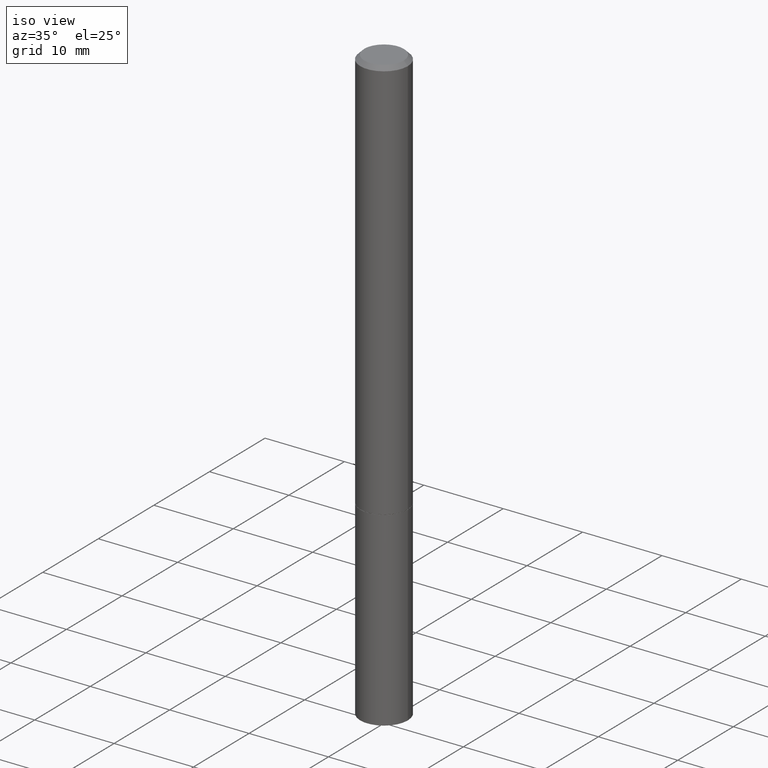
[diagram: clean part render]
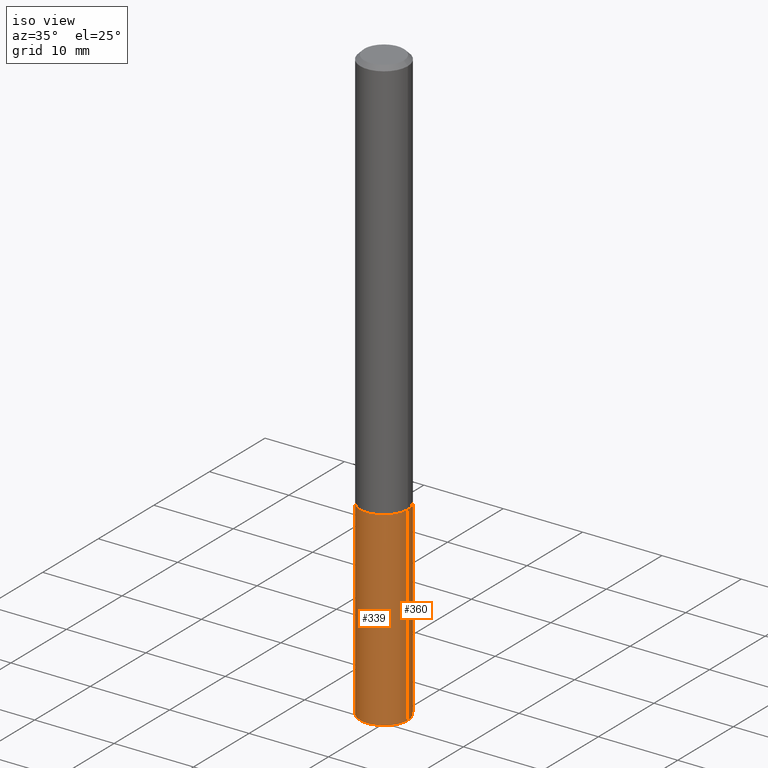
[diagram: same view with one multi-face feature highlighted, each face labeled with its STEP entity id]
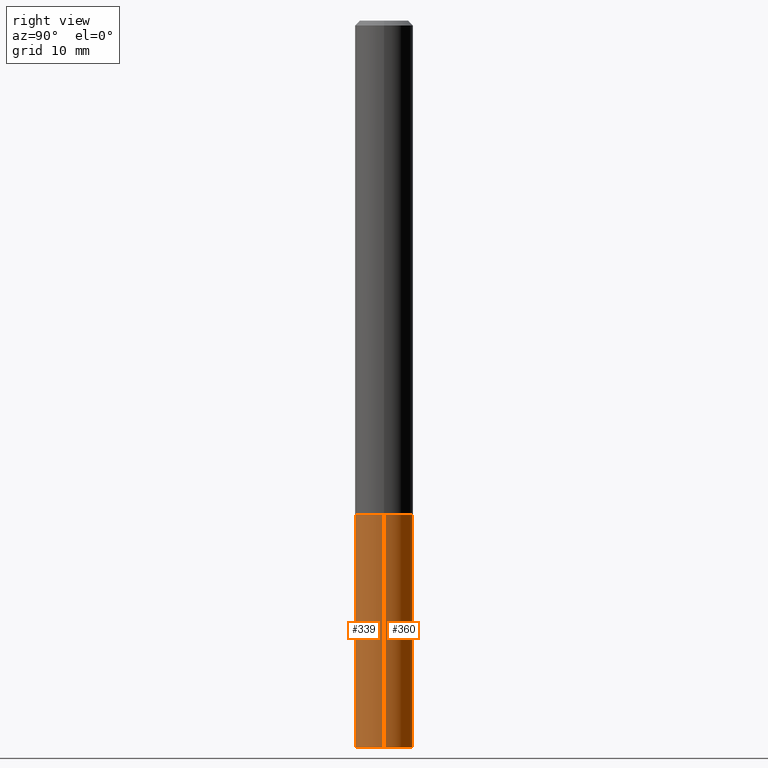
[diagram: same view with one multi-face feature highlighted, each face labeled with its STEP entity id]
A machine part, iso view. The highlighted faces form ONE feature: a constant-radius fillet chain: 2 tangent blend faces with common blend radius 2.9997 mm. The faces share edges in the B-rep.
A second angle (right view) of the same feature is appended — it is thin or edge-on in the first view.
Their STEP definitions:
[1] entity #360 (Cylinder):
#1 = LINE ( 'NONE', #258, #297 ) ;
#7 = VERTEX_POINT ( 'NONE', #182 ) ;
#19 = CARTESIAN_POINT ( 'NONE',  ( 4.910256815939135309E-29, -7.010545380263150922E-15, -2.007899999999999796 ) ) ;
#35 = CYLINDRICAL_SURFACE ( 'NONE', #265, 0.1180999999999999966 ) ;
#36 = ORIENTED_EDGE ( 'NONE', *, *, #198, .T. ) ;
#42 = EDGE_CURVE ( 'NONE', #150, #318, #61, .T. ) ;
#43 = AXIS2_PLACEMENT_3D ( 'NONE', #19, #134, #272 ) ;
#50 = LINE ( 'NONE', #261, #118 ) ;
#58 = DIRECTION ( 'NONE',  ( 1.000000000000000000, -6.982962677686266711E-15, 4.876176775795936353E-29 ) ) ;
#59 = ORIENTED_EDGE ( 'NONE', *, *, #42, .F. ) ;
#61 = CIRCLE ( 'NONE', #43, 0.1180999999999999966 ) ;
#65 = CARTESIAN_POINT ( 'NONE',  ( 0.000000000000000000, 0.000000000000000000, 0.000000000000000000 ) ) ;
#80 = DIRECTION ( 'NONE',  ( -2.445468806185136877E-29, 3.491481338843145188E-15, 1.000000000000000000 ) ) ;
#92 = EDGE_LOOP ( 'NONE', ( #36, #288, #59, #178 ) ) ;
#94 = AXIS2_PLACEMENT_3D ( 'NONE', #109, #340, #250 ) ;
#109 = CARTESIAN_POINT ( 'NONE',  ( 7.220980290903470182E-29, -1.030964609733603853E-14, -2.952799999999999869 ) ) ;
#118 = VECTOR ( 'NONE', #229, 39.37007874015748143 ) ;
#134 = DIRECTION ( 'NONE',  ( -2.445468806185136597E-29, 3.491481338843145583E-15, 1.000000000000000000 ) ) ;
#139 = CARTESIAN_POINT ( 'NONE',  ( 0.1180999999999999966, -1.113433398957078679E-14, -2.952799999999999869 ) ) ;
#150 = VERTEX_POINT ( 'NONE', #332 ) ;
#178 = ORIENTED_EDGE ( 'NONE', *, *, #254, .F. ) ;
#182 = CARTESIAN_POINT ( 'NONE',  ( -0.1180999999999999966, -7.820944767866917317E-15, -2.952799999999999869 ) ) ;
#198 = EDGE_CURVE ( 'NONE', #269, #7, #321, .T. ) ;
#229 = DIRECTION ( 'NONE',  ( -2.445468806185136877E-29, 3.491481338843145188E-15, 1.000000000000000000 ) ) ;
#250 = DIRECTION ( 'NONE',  ( 1.000000000000000000, -6.982962677686273021E-15, 0.000000000000000000 ) ) ;
#254 = EDGE_CURVE ( 'NONE', #269, #150, #1, .T. ) ;
#258 = CARTESIAN_POINT ( 'NONE',  ( 0.1180999999999999966, -8.246878922347480654E-16, 5.758764772215000440E-30 ) ) ;
#261 = CARTESIAN_POINT ( 'NONE',  ( -0.1180999999999999966, 8.391509709326782957E-16, -5.809262341591043784E-30 ) ) ;
#265 = AXIS2_PLACEMENT_3D ( 'NONE', #65, #287, #58 ) ;
#269 = VERTEX_POINT ( 'NONE', #139 ) ;
#272 = DIRECTION ( 'NONE',  ( 1.000000000000000000, -6.982962677686265133E-15, 0.000000000000000000 ) ) ;
#284 = CARTESIAN_POINT ( 'NONE',  ( -0.1180999999999999966, -7.820944767866917317E-15, -2.007899999999999796 ) ) ;
#287 = DIRECTION ( 'NONE',  ( -2.445468806185136597E-29, 3.491481338843145583E-15, 1.000000000000000000 ) ) ;
#288 = ORIENTED_EDGE ( 'NONE', *, *, #300, .T. ) ;
#297 = VECTOR ( 'NONE', #80, 39.37007874015748143 ) ;
#300 = EDGE_CURVE ( 'NONE', #7, #318, #50, .T. ) ;
#318 = VERTEX_POINT ( 'NONE', #284 ) ;
#321 = CIRCLE ( 'NONE', #94, 0.1180999999999999966 ) ;
#332 = CARTESIAN_POINT ( 'NONE',  ( 0.1180999999999999966, -7.835233272497899184E-15, -2.007899999999999796 ) ) ;
#340 = DIRECTION ( 'NONE',  ( -2.445468806185136597E-29, 3.491481338843145583E-15, 1.000000000000000000 ) ) ;
#349 = FACE_OUTER_BOUND ( 'NONE', #92, .T. ) ;
#360 = ADVANCED_FACE ( 'NONE', ( #349 ), #35, .T. ) ;
[2] entity #339 (Cylinder):
#1 = LINE ( 'NONE', #258, #297 ) ;
#7 = VERTEX_POINT ( 'NONE', #182 ) ;
#15 = CYLINDRICAL_SURFACE ( 'NONE', #46, 0.1180999999999999966 ) ;
#46 = AXIS2_PLACEMENT_3D ( 'NONE', #186, #273, #296 ) ;
#49 = CIRCLE ( 'NONE', #143, 0.1180999999999999966 ) ;
#50 = LINE ( 'NONE', #261, #118 ) ;
#80 = DIRECTION ( 'NONE',  ( -2.445468806185136877E-29, 3.491481338843145188E-15, 1.000000000000000000 ) ) ;
#83 = EDGE_CURVE ( 'NONE', #7, #269, #49, .T. ) ;
#106 = DIRECTION ( 'NONE',  ( -2.445468806185136597E-29, 3.491481338843145583E-15, 1.000000000000000000 ) ) ;
#118 = VECTOR ( 'NONE', #229, 39.37007874015748143 ) ;
#119 = ORIENTED_EDGE ( 'NONE', *, *, #83, .T. ) ;
#122 = EDGE_LOOP ( 'NONE', ( #185, #119, #290, #154 ) ) ;
#129 = CARTESIAN_POINT ( 'NONE',  ( 7.220980290903470182E-29, -1.030964609733603853E-14, -2.952799999999999869 ) ) ;
#139 = CARTESIAN_POINT ( 'NONE',  ( 0.1180999999999999966, -1.113433398957078679E-14, -2.952799999999999869 ) ) ;
#143 = AXIS2_PLACEMENT_3D ( 'NONE', #129, #106, #363 ) ;
#150 = VERTEX_POINT ( 'NONE', #332 ) ;
#154 = ORIENTED_EDGE ( 'NONE', *, *, #311, .F. ) ;
#182 = CARTESIAN_POINT ( 'NONE',  ( -0.1180999999999999966, -7.820944767866917317E-15, -2.952799999999999869 ) ) ;
#185 = ORIENTED_EDGE ( 'NONE', *, *, #300, .F. ) ;
#186 = CARTESIAN_POINT ( 'NONE',  ( 0.000000000000000000, 0.000000000000000000, 0.000000000000000000 ) ) ;
#199 = CARTESIAN_POINT ( 'NONE',  ( 4.910256815939135309E-29, -7.010545380263150922E-15, -2.007899999999999796 ) ) ;
#206 = DIRECTION ( 'NONE',  ( 1.000000000000000000, -6.982962677686265133E-15, 0.000000000000000000 ) ) ;
#211 = CIRCLE ( 'NONE', #347, 0.1180999999999999966 ) ;
#229 = DIRECTION ( 'NONE',  ( -2.445468806185136877E-29, 3.491481338843145188E-15, 1.000000000000000000 ) ) ;
#236 = DIRECTION ( 'NONE',  ( -2.445468806185136597E-29, 3.491481338843145583E-15, 1.000000000000000000 ) ) ;
#254 = EDGE_CURVE ( 'NONE', #269, #150, #1, .T. ) ;
#258 = CARTESIAN_POINT ( 'NONE',  ( 0.1180999999999999966, -8.246878922347480654E-16, 5.758764772215000440E-30 ) ) ;
#261 = CARTESIAN_POINT ( 'NONE',  ( -0.1180999999999999966, 8.391509709326782957E-16, -5.809262341591043784E-30 ) ) ;
#269 = VERTEX_POINT ( 'NONE', #139 ) ;
#273 = DIRECTION ( 'NONE',  ( -2.445468806185136597E-29, 3.491481338843145583E-15, 1.000000000000000000 ) ) ;
#284 = CARTESIAN_POINT ( 'NONE',  ( -0.1180999999999999966, -7.820944767866917317E-15, -2.007899999999999796 ) ) ;
#290 = ORIENTED_EDGE ( 'NONE', *, *, #254, .T. ) ;
#296 = DIRECTION ( 'NONE',  ( 1.000000000000000000, -6.982962677686266711E-15, 4.876176775795936353E-29 ) ) ;
#297 = VECTOR ( 'NONE', #80, 39.37007874015748143 ) ;
#300 = EDGE_CURVE ( 'NONE', #7, #318, #50, .T. ) ;
#311 = EDGE_CURVE ( 'NONE', #318, #150, #211, .T. ) ;
#317 = FACE_OUTER_BOUND ( 'NONE', #122, .T. ) ;
#318 = VERTEX_POINT ( 'NONE', #284 ) ;
#332 = CARTESIAN_POINT ( 'NONE',  ( 0.1180999999999999966, -7.835233272497899184E-15, -2.007899999999999796 ) ) ;
#339 = ADVANCED_FACE ( 'NONE', ( #317 ), #15, .T. ) ;
#347 = AXIS2_PLACEMENT_3D ( 'NONE', #199, #236, #206 ) ;
#363 = DIRECTION ( 'NONE',  ( 1.000000000000000000, -6.982962677686273021E-15, 0.000000000000000000 ) ) ;